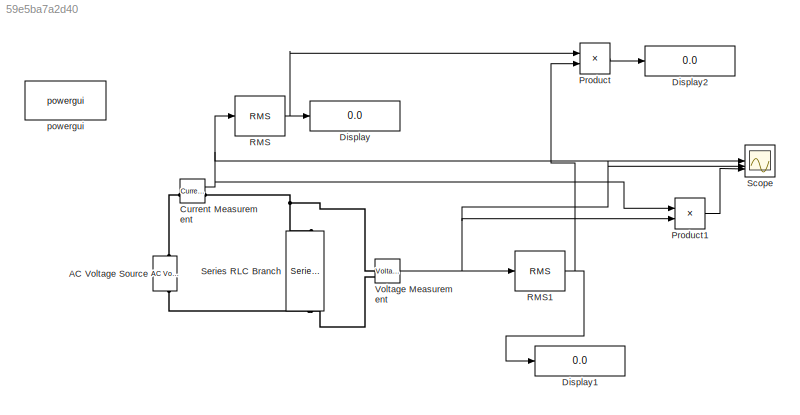
MODEL slx_59e5ba7a2d40
KIND model
CONFIG AbsTol = auto
CONFIG EnableMultiTasking = off
CONFIG FixedStep = auto
CONFIG MaxStep = auto
CONFIG MinStep = auto
CONFIG RelTol = 1e-3
CONFIG SampleTimeConstraint = Unconstrained
CONFIG SolverName = VariableStepAuto
CONFIG StartTime = 0.0
CONFIG StopTime = 10.0
BLOCK [Reference] AC Voltage Source  REF=spsACVoltageSourceLib/AC Voltage Source
  LibrarySourceBlock = sps_lib/Sources/AC Voltage Source
  SourceBlock = spsACVoltageSourceLib/AC Voltage Source
  SourceType = AC Voltage Source
BLOCK [Reference] Current Measurement  REF=spsCurrentMeasurementLib/Current Measurement
  LibrarySourceBlock = sps_lib/Sensors and Measurements/Current Measurement
  SourceBlock = spsCurrentMeasurementLib/Current Measurement
  SourceType = Current Measurement
  UserDataPersistent = on
BLOCK [Display] Display
  Decimation = 1
BLOCK [Display] Display1
  Decimation = 1
BLOCK [Display] Display2
  Decimation = 1
BLOCK [Product] Product
BLOCK [Product] Product1
BLOCK [Reference] RMS  REF=spsRMSLib/RMS
  LibrarySourceBlock = sps_lib/Sensors and Measurements/RMS
  SourceBlock = spsRMSLib/RMS
  SourceType = RMS
BLOCK [Reference] RMS1  REF=spsRMSLib/RMS
  LibrarySourceBlock = sps_lib/Sensors and Measurements/RMS
  SourceBlock = spsRMSLib/RMS
  SourceType = RMS
BLOCK [Scope] Scope
  Floating = off
  NumInputPorts = 3
  ScopeSpecificationString = Simulink.scopes.TimeScopeBlockCfg('CurrentConfiguration', extmgr.ConfigurationSet(extmgr.Configuration('Core','General UI',true),extmgr.Configuration('Core','Source UI',true),extmgr.Configuration('Sources','WiredSimulink',true),extmgr.Configuration('Visuals','Time Domain',true,'SerializedDisplays',{struct('MinYLimReal','-199.39868','MaxYLimReal','962.36082','YLabelReal','','MinYLimMag',' 0.00000',...<+1533ch>
BLOCK [Reference] Series RLC Branch  REF=spsSeriesRLCBranchLib/Series RLC Branch
  LibrarySourceBlock = sps_lib/Passives/Series RLC Branch
  NameLocation = left
  SourceBlock = spsSeriesRLCBranchLib/Series RLC Branch
  SourceType = Series RLC Branch
BLOCK [Reference] Voltage Measurement  REF=spsVoltageMeasurementLib/Voltage Measurement
  LibrarySourceBlock = sps_lib/Sensors and Measurements/Voltage Measurement
  SourceBlock = spsVoltageMeasurementLib/Voltage Measurement
  SourceType = Voltage Measurement
  UserDataPersistent = on
BLOCK [Reference] powergui  REF=sps_lib/powergui
  LibrarySourceBlock = sps_lib/powergui
  Priority = 1
  SourceBlock = sps_lib/powergui
  SourceType = PSB option menu block
NET Current Measurement:1 -> Product1:1, RMS:1, Scope:1
LINE Product1:1 -> Scope:3
LINE Product:1 -> Display2:1
NET RMS1:1 -> Display1:1, Product:2
NET RMS:1 -> Display:1, Product:1
NET Voltage Measurement:1 -> Product1:2, RMS1:1, Scope:2
PNET net1: AC Voltage Source:LConn1 -- Series RLC Branch:RConn1 -- Voltage Measurement:LConn2
PLINE AC Voltage Source:RConn1 -- Current Measurement:LConn1
PNET net2: Current Measurement:RConn1 -- Series RLC Branch:LConn1 -- Voltage Measurement:LConn1
note: NET lines group one-source signal fan-out (src -> all destinations, sorted); 1:1 wires keep LINE; PNET lines group multi-terminal physical nets as a canonical sorted terminal list (undirected conserving connections); 2-terminal nets keep the pairwise PLINE form
